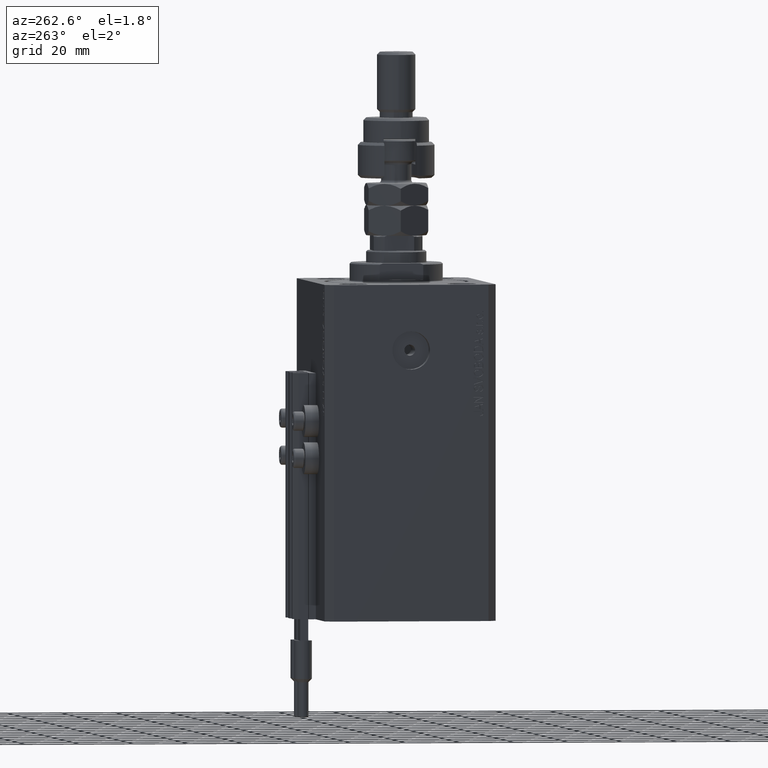
[diagram: clean part render]
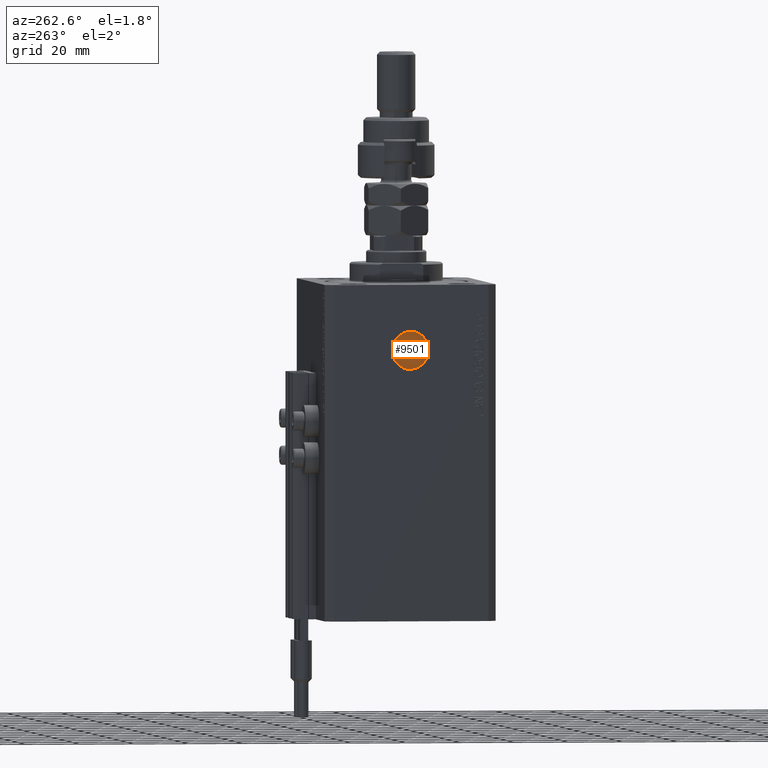
[diagram: same view with one face highlighted and labeled with its STEP entity id]
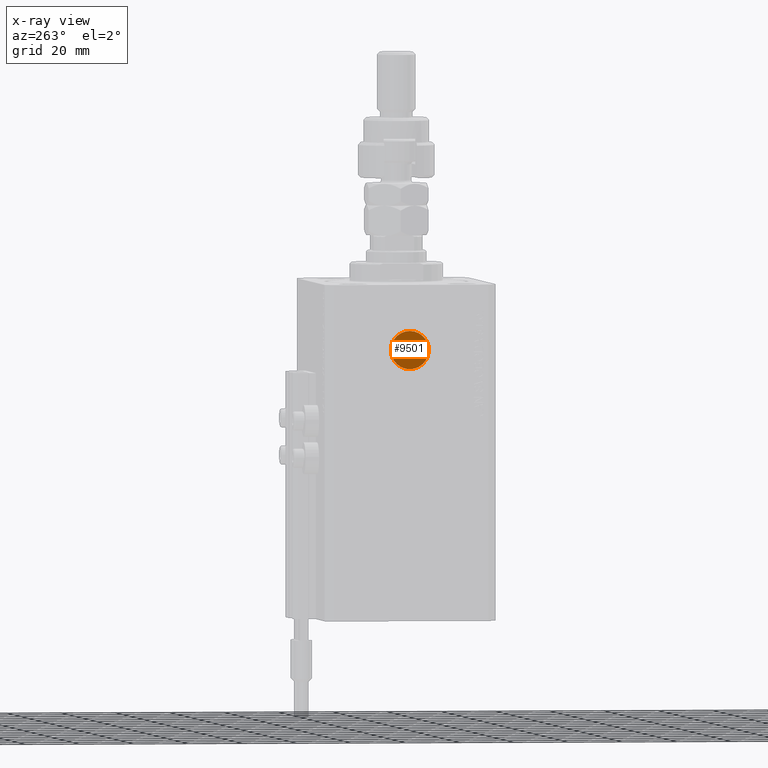
[diagram: x-ray of the same camera — body ghosted, the highlighted face saturated]
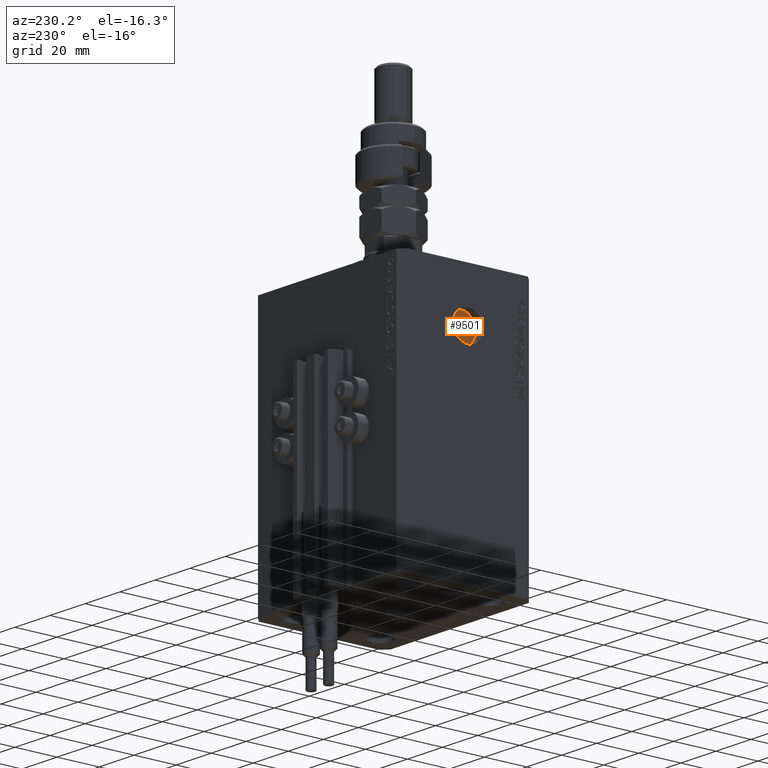
[diagram: same view with one face highlighted and labeled with its STEP entity id]
A machine part, auxiliary view. The second image highlights one B-rep face of the part: STEP entity #9501.
The next image is the same camera in x-ray: the body ghosted, the highlighted face saturated — about 0% of this face is hidden behind the body in this view.
A second angle (auxiliary view) of the same face is appended — the face is thin or edge-on in the first view.
In plain terms, the highlighted planar face has unit normal (-1, 0, 0).
Its self-contained STEP definition (entity closure, byte-faithful):
#1859 = AXIS2_PLACEMENT_3D ( 'NONE', #19247, #11015, #39589 ) ;
#3245 = EDGE_LOOP ( 'NONE', ( #48841, #26410 ) ) ;
#5239 = AXIS2_PLACEMENT_3D ( 'NONE', #32773, #48495, #31073 ) ;
#6925 = VERTEX_POINT ( 'NONE', #35654 ) ;
#7030 = CARTESIAN_POINT ( 'NONE',  ( -38.50000000000000711, 0.000000000000000000, -22.00000000000000000 ) ) ;
#7221 = CARTESIAN_POINT ( 'NONE',  ( -38.50000000000000711, 0.000000000000000000, -23.99999999999999645 ) ) ;
#8339 = ORIENTED_EDGE ( 'NONE', *, *, #9437, .T. ) ;
#9437 = EDGE_CURVE ( 'NONE', #42311, #21720, #40569, .T. ) ;
#9501 = ADVANCED_FACE ( 'NONE', ( #15381, #27499 ), #31110, .T. ) ;
#9716 = CARTESIAN_POINT ( 'NONE',  ( -38.50000000000000711, 0.000000000000000000, -16.99999999999999645 ) ) ;
#11015 = DIRECTION ( 'NONE',  ( -1.000000000000000000, 0.000000000000000000, 0.000000000000000000 ) ) ;
#11113 = DIRECTION ( 'NONE',  ( 0.000000000000000000, 0.000000000000000000, 1.000000000000000000 ) ) ;
#11520 = CARTESIAN_POINT ( 'NONE',  ( -38.50000000000000711, 0.000000000000000000, -23.99999999999999645 ) ) ;
#11532 = EDGE_CURVE ( 'NONE', #13556, #6925, #25826, .T. ) ;
#13556 = VERTEX_POINT ( 'NONE', #7030 ) ;
#15381 = FACE_BOUND ( 'NONE', #3245, .T. ) ;
#17508 = ORIENTED_EDGE ( 'NONE', *, *, #47283, .T. ) ;
#19247 = CARTESIAN_POINT ( 'NONE',  ( -38.50000000000000711, 0.000000000000000000, -23.99999999999999645 ) ) ;
#21720 = VERTEX_POINT ( 'NONE', #9716 ) ;
#22851 = DIRECTION ( 'NONE',  ( -1.000000000000000000, 0.000000000000000000, 0.000000000000000000 ) ) ;
#25494 = CARTESIAN_POINT ( 'NONE',  ( -38.50000000000000711, 8.572527594031474176E-16, -31.00000000000000000 ) ) ;
#25826 = CIRCLE ( 'NONE', #5239, 1.999999999999998224 ) ;
#26410 = ORIENTED_EDGE ( 'NONE', *, *, #33458, .F. ) ;
#26556 = AXIS2_PLACEMENT_3D ( 'NONE', #11520, #22851, #42971 ) ;
#26583 = CIRCLE ( 'NONE', #41413, 1.999999999999998224 ) ;
#27499 = FACE_OUTER_BOUND ( 'NONE', #36607, .T. ) ;
#29635 = CARTESIAN_POINT ( 'NONE',  ( -38.50000000000000711, 0.000000000000000000, -23.99999999999999645 ) ) ;
#31073 = DIRECTION ( 'NONE',  ( 0.000000000000000000, 0.000000000000000000, 1.000000000000000000 ) ) ;
#31110 = PLANE ( 'NONE',  #26556 ) ;
#32773 = CARTESIAN_POINT ( 'NONE',  ( -38.50000000000000711, 0.000000000000000000, -23.99999999999999645 ) ) ;
#33458 = EDGE_CURVE ( 'NONE', #6925, #13556, #26583, .T. ) ;
#34309 = DIRECTION ( 'NONE',  ( -1.000000000000000000, 0.000000000000000000, 0.000000000000000000 ) ) ;
#35654 = CARTESIAN_POINT ( 'NONE',  ( -38.50000000000000711, 2.449293598294705921E-16, -25.99999999999999645 ) ) ;
#36607 = EDGE_LOOP ( 'NONE', ( #17508, #8339 ) ) ;
#38581 = CIRCLE ( 'NONE', #50101, 6.999999999999999112 ) ;
#39589 = DIRECTION ( 'NONE',  ( 0.000000000000000000, 0.000000000000000000, 1.000000000000000000 ) ) ;
#40569 = CIRCLE ( 'NONE', #1859, 6.999999999999999112 ) ;
#41413 = AXIS2_PLACEMENT_3D ( 'NONE', #7221, #34309, #11113 ) ;
#42311 = VERTEX_POINT ( 'NONE', #25494 ) ;
#42971 = DIRECTION ( 'NONE',  ( 0.000000000000000000, 0.000000000000000000, 1.000000000000000000 ) ) ;
#46106 = DIRECTION ( 'NONE',  ( -1.000000000000000000, 0.000000000000000000, 0.000000000000000000 ) ) ;
#47283 = EDGE_CURVE ( 'NONE', #21720, #42311, #38581, .T. ) ;
#48495 = DIRECTION ( 'NONE',  ( -1.000000000000000000, 0.000000000000000000, 0.000000000000000000 ) ) ;
#48841 = ORIENTED_EDGE ( 'NONE', *, *, #11532, .F. ) ;
#49715 = DIRECTION ( 'NONE',  ( 0.000000000000000000, 0.000000000000000000, 1.000000000000000000 ) ) ;
#50101 = AXIS2_PLACEMENT_3D ( 'NONE', #29635, #46106, #49715 ) ;